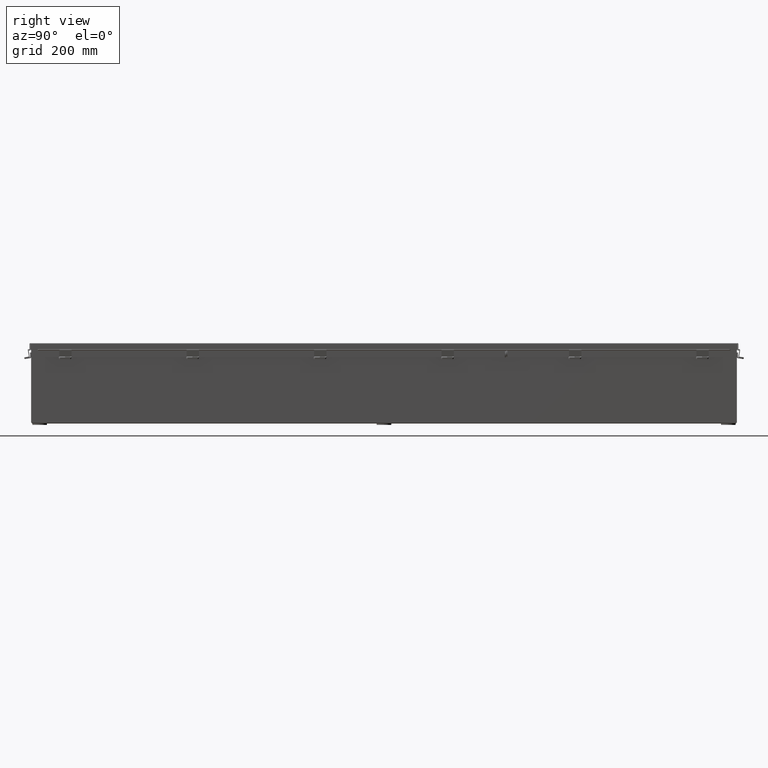
[diagram: clean part render]
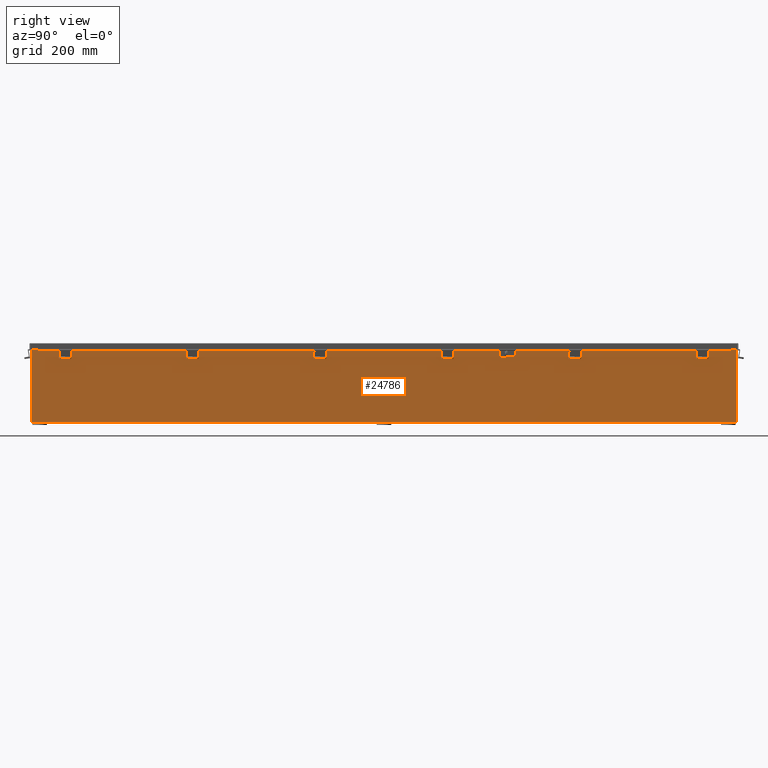
[diagram: same view with one face highlighted and labeled with its STEP entity id]
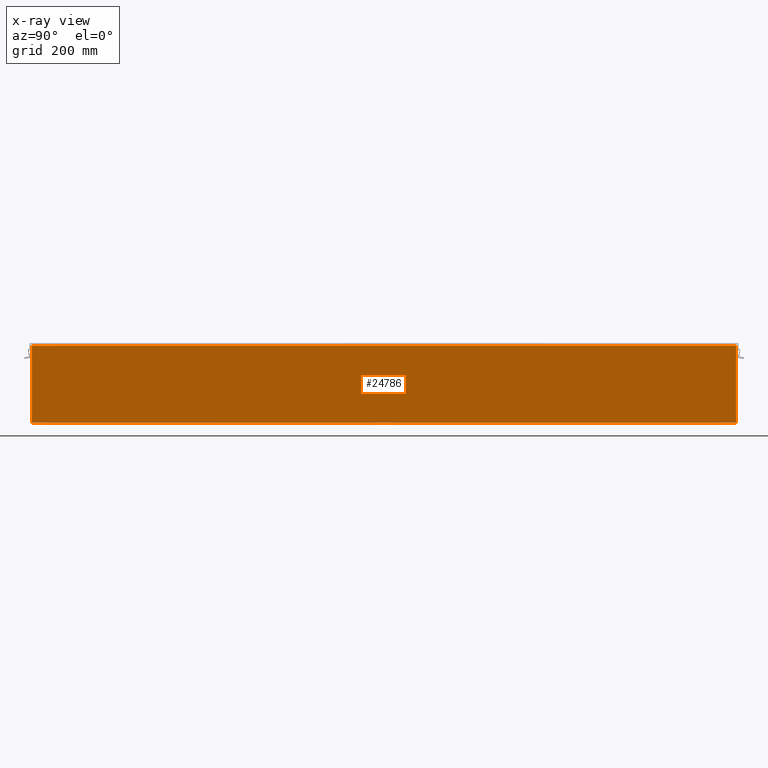
[diagram: x-ray of the same camera — body ghosted, the highlighted face saturated]
A machine part, right view. The second image highlights one B-rep face of the part: STEP entity #24786.
The next image is the same camera in x-ray: the body ghosted, the highlighted face saturated — about 0% of this face is hidden behind the body in this view.
In plain terms, the highlighted planar face has unit normal (-1, 0, 0).
Its self-contained STEP definition (entity closure, byte-faithful):
#1855 = LINE ( 'NONE', #18611, #21541 ) ;
#2245 = AXIS2_PLACEMENT_3D ( 'NONE', #39552, #20071, #47387 ) ;
#5104 = VERTEX_POINT ( 'NONE', #30722 ) ;
#5632 = LINE ( 'NONE', #16700, #47290 ) ;
#6856 = LINE ( 'NONE', #22387, #14901 ) ;
#8954 = LINE ( 'NONE', #40763, #18221 ) ;
#9418 = DIRECTION ( 'NONE',  ( -0.0000000000000000000, -1.000000000000000000, -0.0000000000000000000 ) ) ;
#9452 = ORIENTED_EDGE ( 'NONE', *, *, #39391, .T. ) ;
#11827 = CARTESIAN_POINT ( 'NONE',  ( 4.000000000000027500, 35.92529999999997900, 7.837599999999999200 ) ) ;
#14901 = VECTOR ( 'NONE', #26295, 39.37007874015748100 ) ;
#14988 = EDGE_CURVE ( 'NONE', #5104, #47744, #1855, .T. ) ;
#16571 = CARTESIAN_POINT ( 'NONE',  ( 4.000000000000029300, -35.92530000000000000, 7.837599999999999200 ) ) ;
#16700 = CARTESIAN_POINT ( 'NONE',  ( 4.000000000000001800, -35.92530000000000000, -1.417999849211356600E-014 ) ) ;
#18221 = VECTOR ( 'NONE', #9418, 39.37007874015748100 ) ;
#18611 = CARTESIAN_POINT ( 'NONE',  ( 4.000000000000001800, -35.92530000000000000, 0.01299999999999984300 ) ) ;
#20071 = DIRECTION ( 'NONE',  ( -1.000000000000000000, 0.0000000000000000000, 3.479795166820705900E-015 ) ) ;
#21541 = VECTOR ( 'NONE', #22539, 39.37007874015748100 ) ;
#22387 = CARTESIAN_POINT ( 'NONE',  ( 4.000000000000001800, 35.92530000000000000, 5.822251036496960700E-015 ) ) ;
#22539 = DIRECTION ( 'NONE',  ( -7.938364978030872700E-032, -1.000000000000000000, -2.281273637518070200E-017 ) ) ;
#24786 = ADVANCED_FACE ( 'NONE', ( #42204 ), #31658, .F. ) ;
#26295 = DIRECTION ( 'NONE',  ( 3.479795166820706300E-015, -5.567672266913130300E-016, 1.000000000000000000 ) ) ;
#30722 = CARTESIAN_POINT ( 'NONE',  ( 4.000000000000001800, 35.92530000000000000, 0.01300000000000148100 ) ) ;
#30824 = CARTESIAN_POINT ( 'NONE',  ( 4.000000000000001800, -35.92530000000000700, 0.01300000000000066200 ) ) ;
#31658 = PLANE ( 'NONE',  #2245 ) ;
#32570 = ORIENTED_EDGE ( 'NONE', *, *, #44822, .T. ) ;
#34978 = EDGE_LOOP ( 'NONE', ( #35769, #9452, #42318, #32570 ) ) ;
#35769 = ORIENTED_EDGE ( 'NONE', *, *, #41680, .T. ) ;
#37043 = VERTEX_POINT ( 'NONE', #16571 ) ;
#39391 = EDGE_CURVE ( 'NONE', #37043, #47744, #5632, .T. ) ;
#39552 = CARTESIAN_POINT ( 'NONE',  ( 4.000000000000001800, 0.0000000000000000000, -1.417999849211356600E-014 ) ) ;
#40763 = CARTESIAN_POINT ( 'NONE',  ( 4.000000000000027500, 35.92529999999999300, 7.837599999999999200 ) ) ;
#41680 = EDGE_CURVE ( 'NONE', #43809, #37043, #8954, .T. ) ;
#42204 = FACE_OUTER_BOUND ( 'NONE', #34978, .T. ) ;
#42318 = ORIENTED_EDGE ( 'NONE', *, *, #14988, .F. ) ;
#43809 = VERTEX_POINT ( 'NONE', #11827 ) ;
#44026 = DIRECTION ( 'NONE',  ( -3.479795166820706300E-015, 0.0000000000000000000, -1.000000000000000000 ) ) ;
#44822 = EDGE_CURVE ( 'NONE', #5104, #43809, #6856, .T. ) ;
#47290 = VECTOR ( 'NONE', #44026, 39.37007874015748100 ) ;
#47387 = DIRECTION ( 'NONE',  ( 3.479795166820705900E-015, 0.0000000000000000000, 1.000000000000000000 ) ) ;
#47744 = VERTEX_POINT ( 'NONE', #30824 ) ;